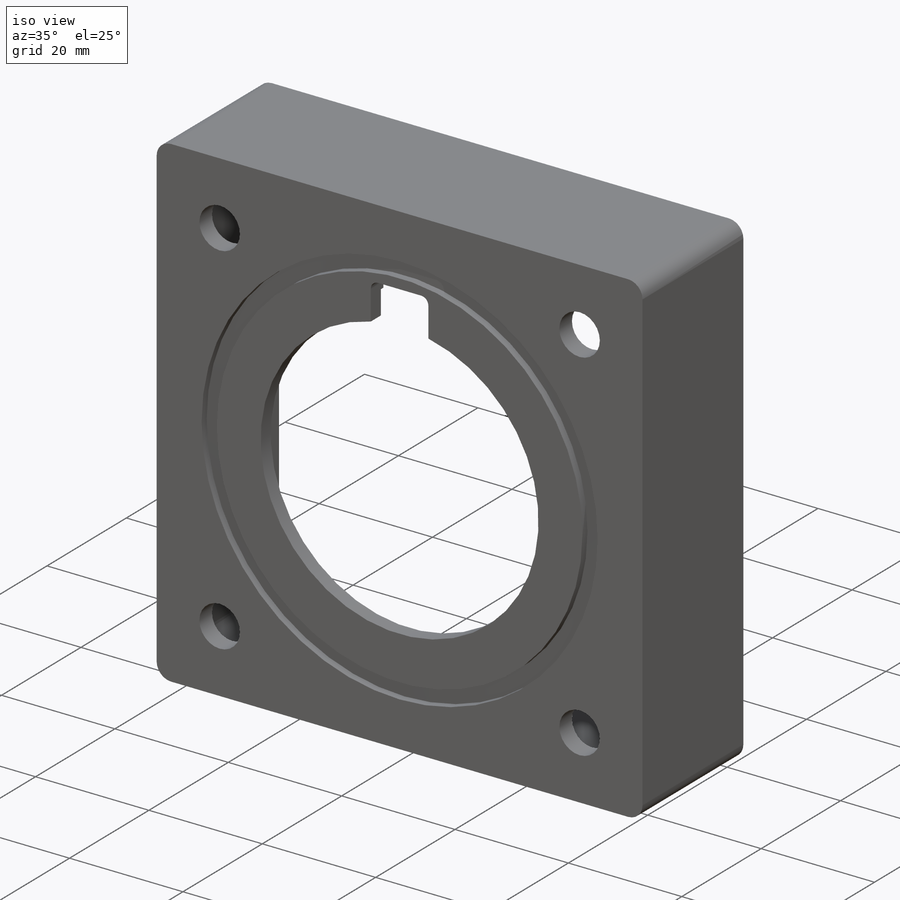
[diagram: iso view]
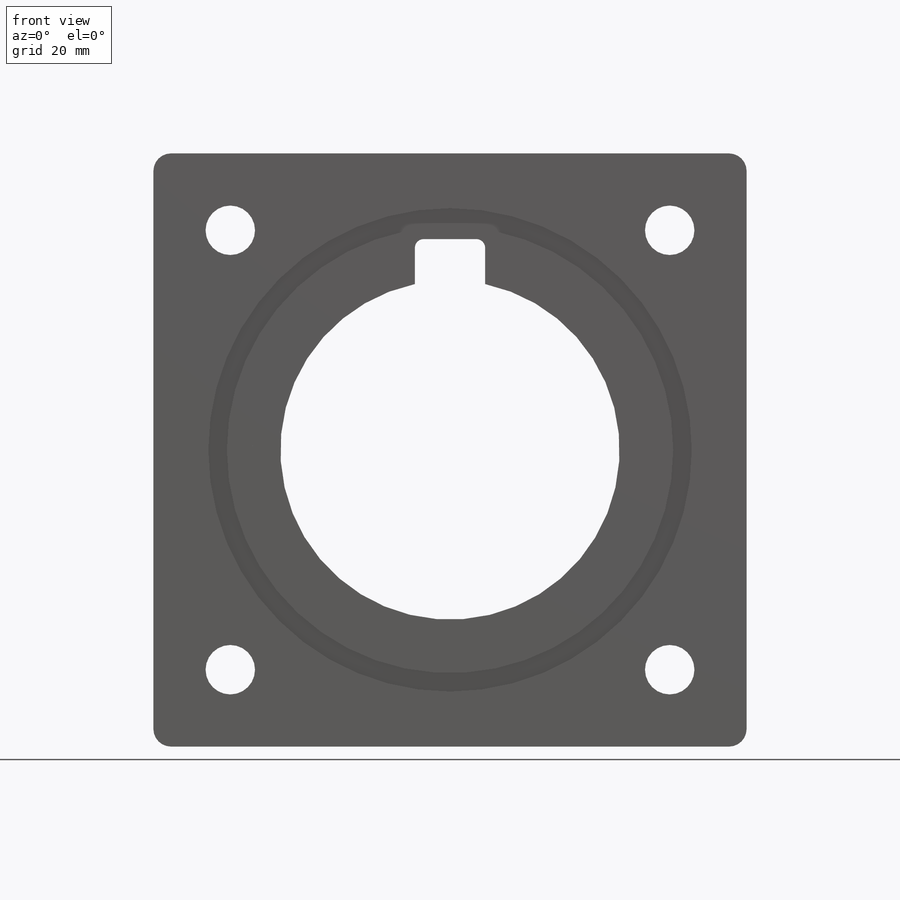
[diagram: front view]
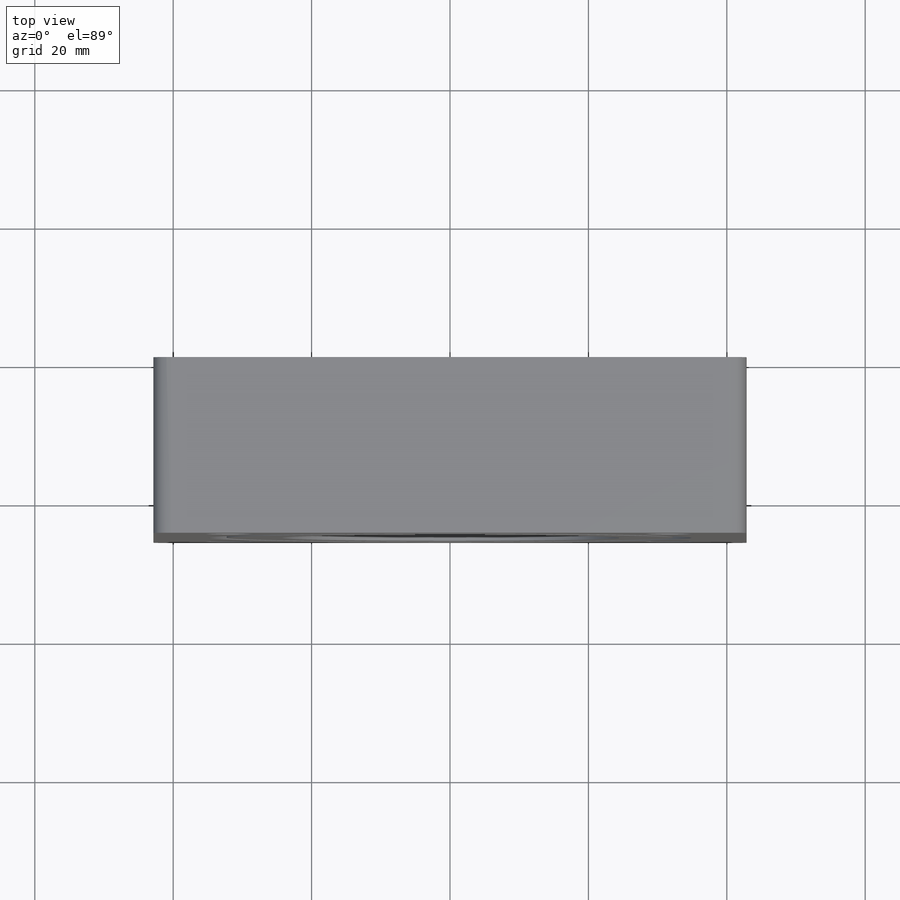
[diagram: top view]
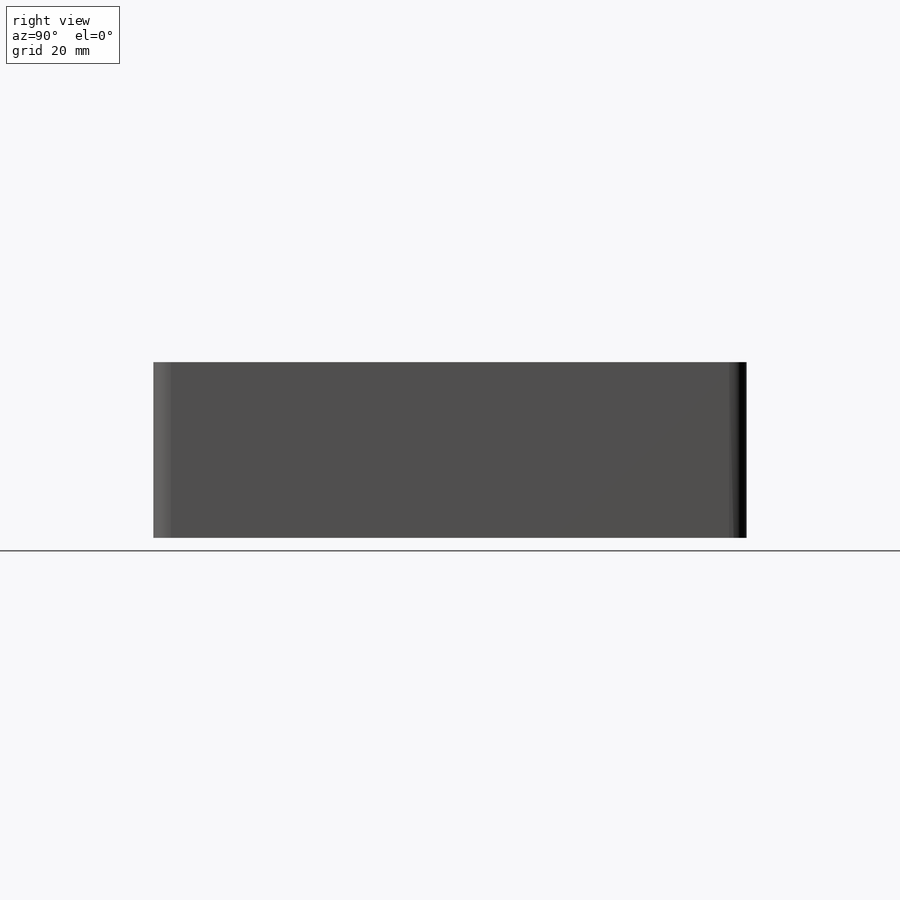
[diagram: right view]
SOLIDWORKS PART (.sldprt)
format: sldprt  version: not decoded by parser v0  size: 334,336 bytes
history: native  units: mm
features: sketch x7, cut_extrude x6, mirror x2, fillet x2, material x1, extrude x1 (+13 scaffold rows collapsed)
feature tree (32):
  scaffold x13  (default folders/planes/origin — collapsed)
  material  "Material <not specified>"
  sketch  "Sketch1"  dims[c1.D5=76.2mm c1.D6=76.2mm c1.D7=76.2mm c2.D5=49.022mm c2.D1=85.725mm c2.D2=85.725mm c2.D3=42.8625mm c2.D4=42.8625mm]
  extrude  "Boss-Extrude1"  Depth=25.4mm
  sketch  "Sketch2"  dims[c1.D1=~84.128774mm c2.D1=45.0deg c2.D2=31.75mm c2.D3=31.75mm]
  cut_extrude  "Cut-Extrude1"  [1 undecoded]
  mirror  "Mirror1"
  mirror  "Mirror2"
  sketch  "Sketch3"  dims[c1.D1=78.74mm c1.D2=39.37mm c1.D3=82.55mm c1.D4=39.37mm c2.D2=40.64mm c2.D4=40.64mm c2.D3=40.64mm c2.D1=39.0525mm c2.2.95=78.105mm c3.D2=78.105mm c3.D3=39.0525mm]
  cut_extrude  "Cut-Extrude2"  Depth=3.175mm
  fillet  "Fillet1"  Radius=2.54mm
  sketch  "Sketch4"  dims[D1=6.35mm D2=50.8mm D3=17.4625mm]
  cut_extrude  "Cut-Extrude3"  Depth=31.75mm
  sketch  "Sketch5"  dims[D1=69.85mm D2=2.667mm]
  cut_extrude  "Cut-Extrude4"  Depth=1.27mm
  sketch  "Sketch6"  dims[c1.D1=2.54mm c1.D2=26.67mm c2.D1=10.16mm c2.D2=5.08mm c2.D3=11.43mm c2.D4=19.05mm]
  cut_extrude  "Cut-Extrude5"  [1 undecoded]
  fillet  "Fillet2"  Radius=1.27mm
  sketch  "Sketch7"  dims[D1=57.2262mm]
  cut_extrude  "Cut-Extrude6"  Depth=0.635mm
decode coverage: 14 of 18 modeling features carry decoded parameters
note: ~ marks probable driven/reference dimensions
note: 2 parameter values undecoded
note: suppression state not decoded; provenance and decode notes live in map.json
